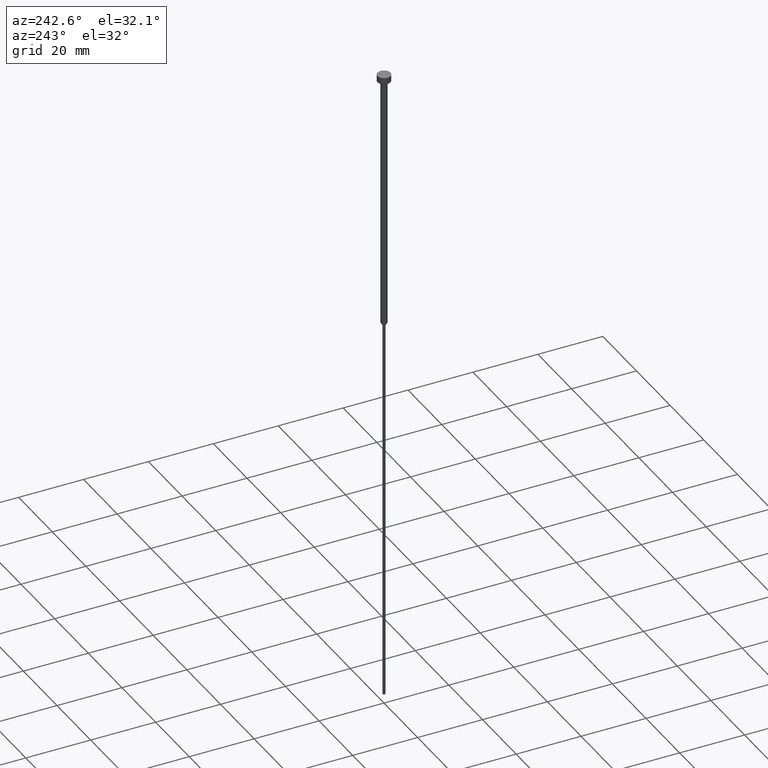
[diagram: clean part render]
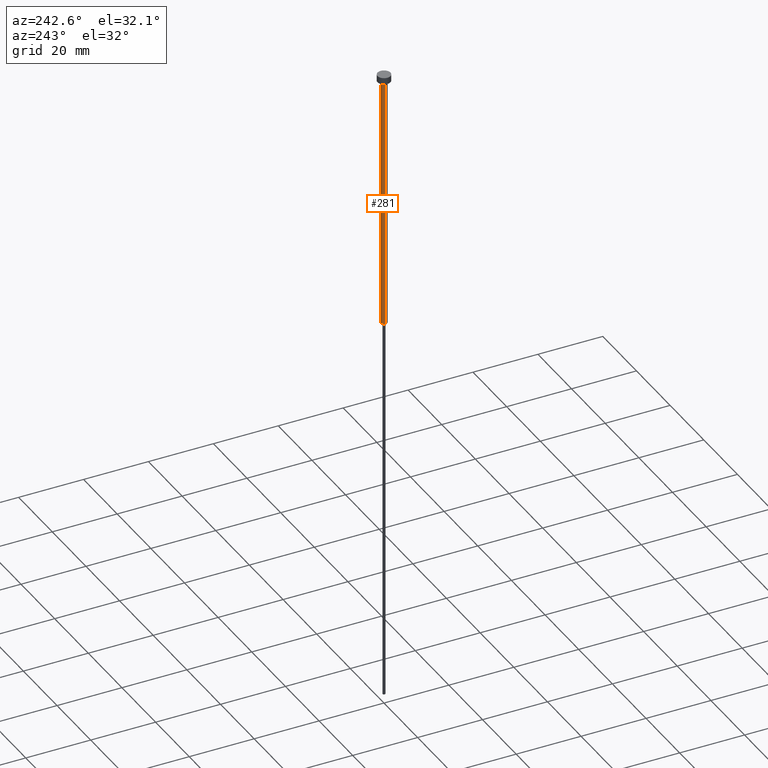
[diagram: same view with one face highlighted and labeled with its STEP entity id]
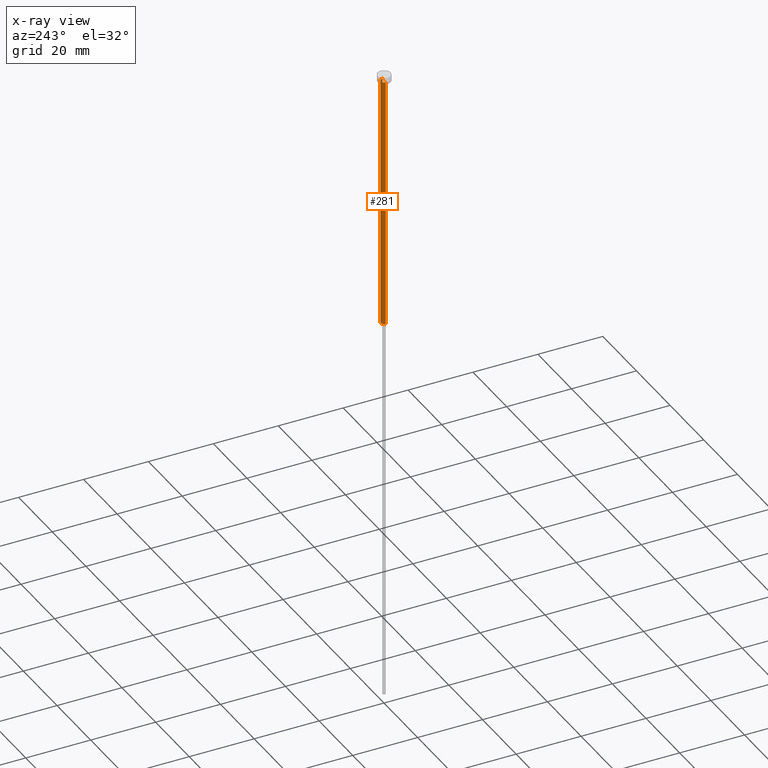
[diagram: x-ray of the same camera — body ghosted, the highlighted face saturated]
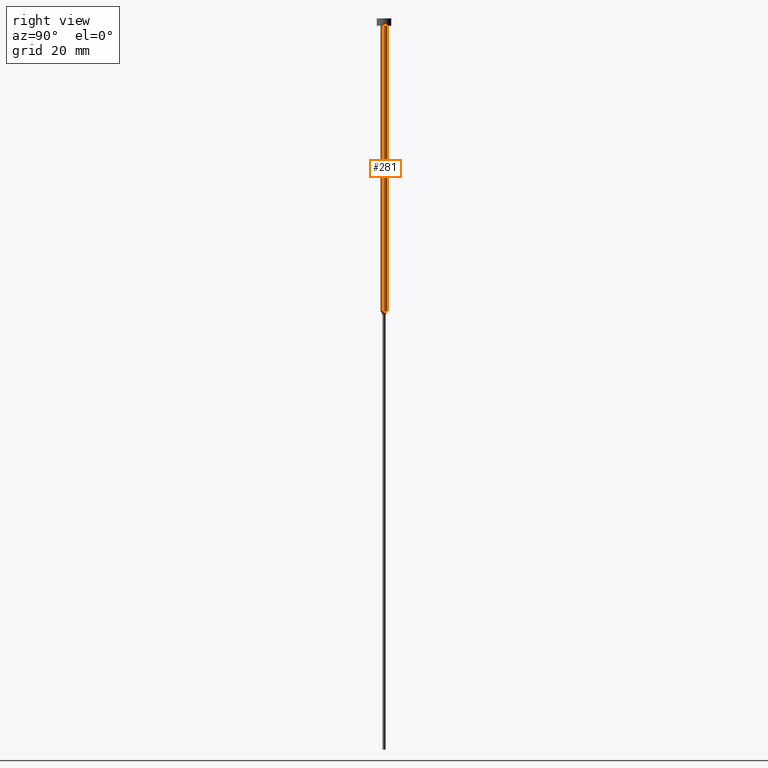
[diagram: same view with one face highlighted and labeled with its STEP entity id]
A machine part, auxiliary view. The second image highlights one B-rep face of the part: STEP entity #281.
The next image is the same camera in x-ray: the body ghosted, the highlighted face saturated — about 0% of this face is hidden behind the body in this view.
A second angle (right view) of the same face is appended — the face is thin or edge-on in the first view.
In plain terms, the highlighted cylindrical surface (edge-blend (fillet) strip) has radius 1 mm, axis along (-0, -0, 1).
Its self-contained STEP definition (entity closure, byte-faithful):
#2 = CARTESIAN_POINT ( 'NONE',  ( 0.000000000000000000, 0.000000000000000000, -2.000000000000000444 ) ) ;
#8 = DIRECTION ( 'NONE',  ( -0.000000000000000000, -0.000000000000000000, 1.000000000000000000 ) ) ;
#21 = CARTESIAN_POINT ( 'NONE',  ( 1.000000000000003553, 0.000000000000000000, -2.000000000000000444 ) ) ;
#22 = DIRECTION ( 'NONE',  ( 1.000000000000000000, 0.000000000000000000, 0.000000000000000000 ) ) ;
#23 = CARTESIAN_POINT ( 'NONE',  ( -1.000000000000003331, 1.224646799147357151E-16, 0.000000000000000000 ) ) ;
#44 = CARTESIAN_POINT ( 'NONE',  ( -1.000000000000003109, 1.224646799147356905E-16, -80.00000000000000000 ) ) ;
#61 = VERTEX_POINT ( 'NONE', #66 ) ;
#65 = EDGE_CURVE ( 'NONE', #262, #110, #102, .T. ) ;
#66 = CARTESIAN_POINT ( 'NONE',  ( 1.000000000000003109, 0.000000000000000000, -80.00000000000000000 ) ) ;
#69 = AXIS2_PLACEMENT_3D ( 'NONE', #341, #332, #94 ) ;
#87 = VERTEX_POINT ( 'NONE', #44 ) ;
#91 = EDGE_CURVE ( 'NONE', #61, #262, #196, .T. ) ;
#94 = DIRECTION ( 'NONE',  ( 1.000000000000000000, 0.000000000000000000, 0.000000000000000000 ) ) ;
#96 = EDGE_CURVE ( 'NONE', #61, #87, #346, .T. ) ;
#102 = CIRCLE ( 'NONE', #152, 1.000000000000003553 ) ;
#110 = VERTEX_POINT ( 'NONE', #258 ) ;
#121 = EDGE_CURVE ( 'NONE', #87, #110, #207, .T. ) ;
#146 = VECTOR ( 'NONE', #343, 1000.000000000000000 ) ;
#152 = AXIS2_PLACEMENT_3D ( 'NONE', #2, #193, #273 ) ;
#160 = DIRECTION ( 'NONE',  ( -0.000000000000000000, -0.000000000000000000, 1.000000000000000000 ) ) ;
#167 = CARTESIAN_POINT ( 'NONE',  ( 1.000000000000003331, 0.000000000000000000, 0.000000000000000000 ) ) ;
#173 = CYLINDRICAL_SURFACE ( 'NONE', #69, 1.000000000000003331 ) ;
#193 = DIRECTION ( 'NONE',  ( -0.000000000000000000, -0.000000000000000000, 1.000000000000000000 ) ) ;
#196 = LINE ( 'NONE', #167, #216 ) ;
#207 = LINE ( 'NONE', #23, #146 ) ;
#215 = ORIENTED_EDGE ( 'NONE', *, *, #65, .F. ) ;
#216 = VECTOR ( 'NONE', #8, 1000.000000000000000 ) ;
#225 = ORIENTED_EDGE ( 'NONE', *, *, #96, .T. ) ;
#251 = CARTESIAN_POINT ( 'NONE',  ( 0.000000000000000000, 0.000000000000000000, -80.00000000000000000 ) ) ;
#258 = CARTESIAN_POINT ( 'NONE',  ( -1.000000000000003553, 1.224646799147357398E-16, -2.000000000000000444 ) ) ;
#262 = VERTEX_POINT ( 'NONE', #21 ) ;
#273 = DIRECTION ( 'NONE',  ( 1.000000000000000000, 0.000000000000000000, 0.000000000000000000 ) ) ;
#281 = ADVANCED_FACE ( 'NONE', ( #334 ), #173, .T. ) ;
#291 = AXIS2_PLACEMENT_3D ( 'NONE', #251, #160, #22 ) ;
#318 = ORIENTED_EDGE ( 'NONE', *, *, #91, .F. ) ;
#323 = EDGE_LOOP ( 'NONE', ( #225, #354, #215, #318 ) ) ;
#332 = DIRECTION ( 'NONE',  ( -0.000000000000000000, -0.000000000000000000, 1.000000000000000000 ) ) ;
#334 = FACE_OUTER_BOUND ( 'NONE', #323, .T. ) ;
#341 = CARTESIAN_POINT ( 'NONE',  ( 0.000000000000000000, 0.000000000000000000, 0.000000000000000000 ) ) ;
#343 = DIRECTION ( 'NONE',  ( -0.000000000000000000, -0.000000000000000000, 1.000000000000000000 ) ) ;
#346 = CIRCLE ( 'NONE', #291, 1.000000000000003109 ) ;
#354 = ORIENTED_EDGE ( 'NONE', *, *, #121, .T. ) ;